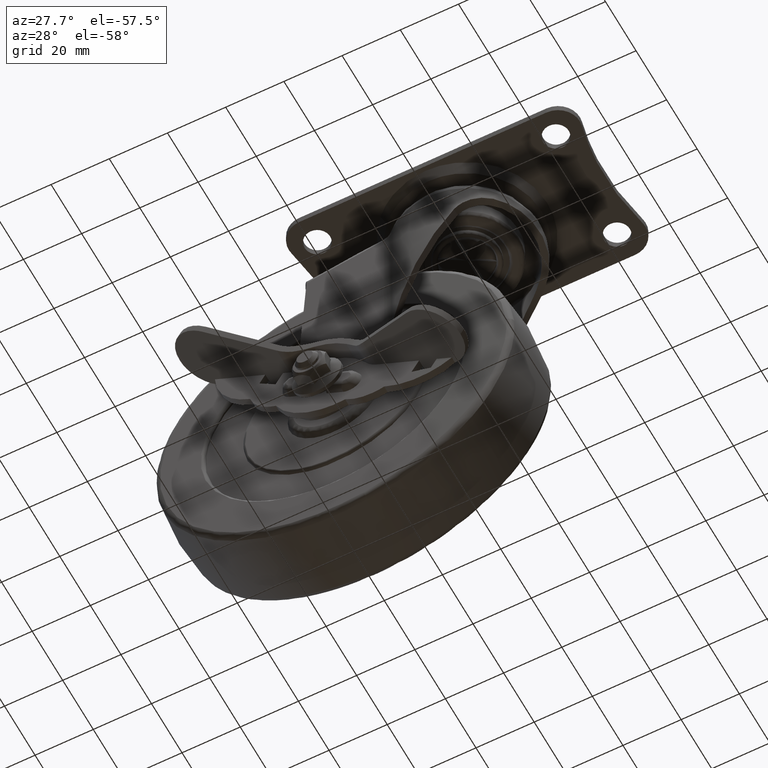
[diagram: clean part render]
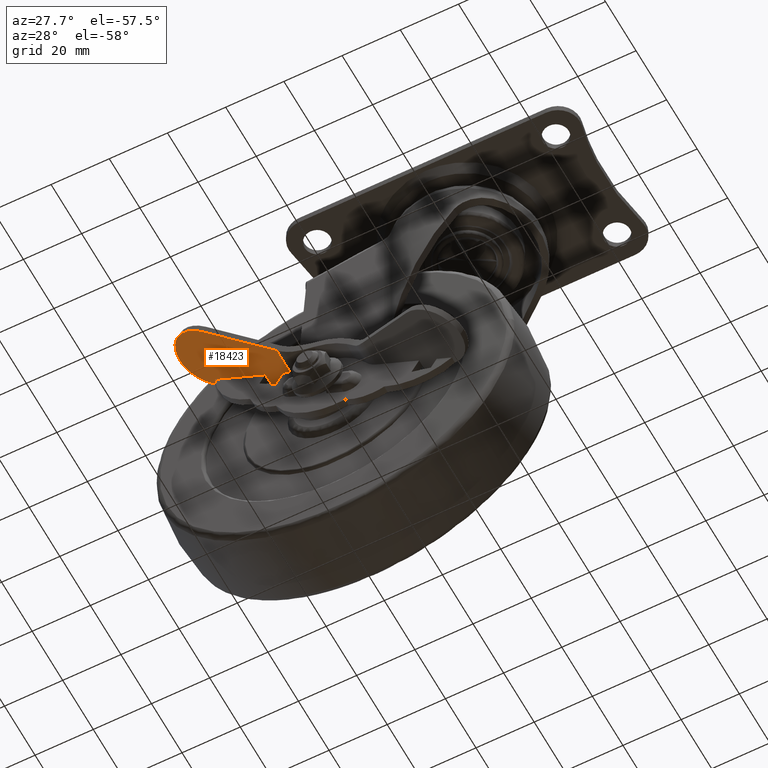
[diagram: same view with one face highlighted and labeled with its STEP entity id]
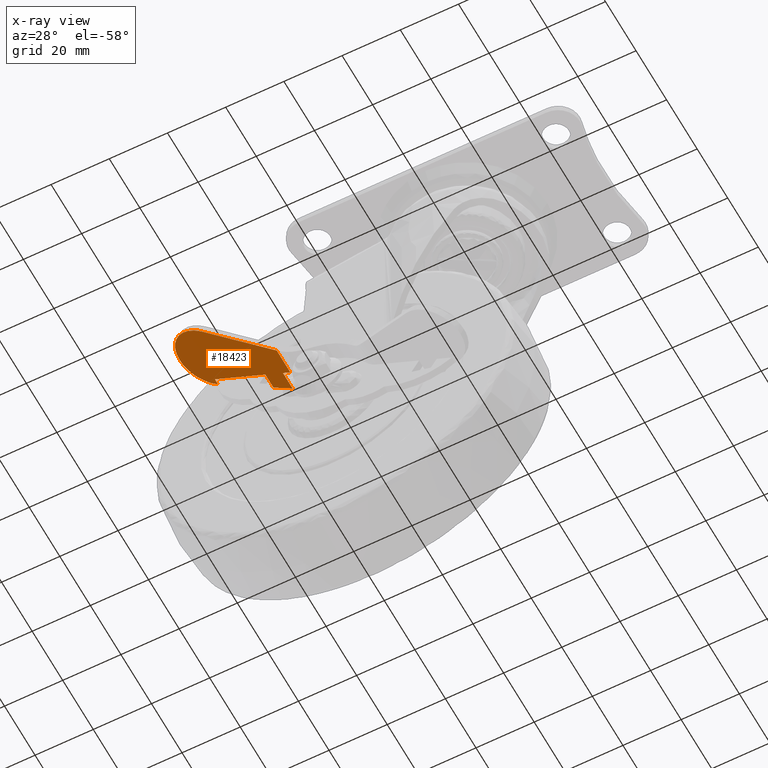
[diagram: x-ray of the same camera — body ghosted, the highlighted face saturated]
A machine part, auxiliary view. The second image highlights one B-rep face of the part: STEP entity #18423.
The next image is the same camera in x-ray: the body ghosted, the highlighted face saturated — about 0% of this face is hidden behind the body in this view.
In plain terms, the highlighted face is a freeform B-spline surface patch.
Its self-contained STEP definition (entity closure, byte-faithful):
#17139=CARTESIAN_POINT('',(-19.999994604672398,-18.300000000000001,7.649978624725780));
#17140=VERTEX_POINT('',#17139);
#17141=CARTESIAN_POINT('',(-19.999994604697601,-14.300000000000001,7.649980063593411));
#17142=VERTEX_POINT('',#17141);
#17143=CARTESIAN_POINT('',(-19.999994604672398,-18.300000000000001,7.649978624725780));
#17144=CARTESIAN_POINT('',(-19.999994604697601,-14.300000000000001,7.649980063593411));
#17145=QUASI_UNIFORM_CURVE('',1,(#17143,#17144),.UNSPECIFIED.,.F.,.U.);
#17146=EDGE_CURVE('',#17140,#17142,#17145,.T.);
#17174=CARTESIAN_POINT('',(-26.999945601030049,-15.300000000000001,7.649980063593411));
#17175=VERTEX_POINT('',#17174);
#17176=CARTESIAN_POINT('',(-26.999945601030049,-18.300000000000001,7.649980063593411));
#17177=VERTEX_POINT('',#17176);
#17178=CARTESIAN_POINT('',(-26.999945601030049,-15.300000000000001,7.649980063593411));
#17179=CARTESIAN_POINT('',(-26.999945601030049,-18.300000000000001,7.649980063593411));
#17180=QUASI_UNIFORM_CURVE('',1,(#17178,#17179),.UNSPECIFIED.,.F.,.U.);
#17181=EDGE_CURVE('',#17175,#17177,#17180,.T.);
#17209=CARTESIAN_POINT('',(-19.999994604697601,-14.300000000000001,7.649980063593411));
#17210=CARTESIAN_POINT('',(-26.999945601030049,-15.300000000000001,7.649980063593411));
#17211=QUASI_UNIFORM_CURVE('',1,(#17209,#17210),.UNSPECIFIED.,.F.,.U.);
#17212=EDGE_CURVE('',#17142,#17175,#17211,.T.);
#17231=CARTESIAN_POINT('',(-19.999994604672398,-20.600000000000001,7.649978624725780));
#17232=VERTEX_POINT('',#17231);
#17238=CARTESIAN_POINT('',(-19.999994604672398,-18.300000000000001,7.649978624725780));
#17239=CARTESIAN_POINT('',(-19.999994604672398,-20.600000000000001,7.649978624725780));
#17240=QUASI_UNIFORM_CURVE('',1,(#17238,#17239),.UNSPECIFIED.,.F.,.U.);
#17241=EDGE_CURVE('',#17140,#17232,#17240,.T.);
#17291=CARTESIAN_POINT('',(-26.999941649886900,-20.600000000000001,7.649979115490890));
#17292=VERTEX_POINT('',#17291);
#17304=CARTESIAN_POINT('',(-26.999945601030049,-18.300000000000001,7.649980063593411));
#17305=CARTESIAN_POINT('',(-26.999941649886900,-20.600000000000001,7.649979115490890));
#17306=QUASI_UNIFORM_CURVE('',1,(#17304,#17305),.UNSPECIFIED.,.F.,.U.);
#17307=EDGE_CURVE('',#17177,#17292,#17306,.T.);
#17435=CARTESIAN_POINT('',(-46.999979737671502,-18.526410372112998,7.649982614401890));
#17436=VERTEX_POINT('',#17435);
#17444=CARTESIAN_POINT('',(-55.749949705107497,-29.240069770663350,7.649983841319810));
#17445=VERTEX_POINT('',#17444);
#17446=CARTESIAN_POINT('',(-46.999979737671502,-18.526410372112998,7.649982614401890));
#17447=CARTESIAN_POINT('',(-47.725295354860727,-18.676024698821429,7.649982716105412));
#17448=CARTESIAN_POINT('',(-48.958518597166417,-19.064230858421759,7.649982889027562));
#17449=CARTESIAN_POINT('',(-50.795313765386787,-20.022257477558028,7.649983146582383));
#17450=CARTESIAN_POINT('',(-52.588784349182120,-21.419721734258669,7.649983398062242));
#17451=CARTESIAN_POINT('',(-54.036130926707948,-23.231068121248651,7.649983601008709));
#17452=CARTESIAN_POINT('',(-54.967624260050719,-25.082428437186099,7.649983731622394));
#17453=CARTESIAN_POINT('',(-55.578939534581913,-26.979826499539492,7.649983817340821));
#17454=CARTESIAN_POINT('',(-55.748043592198307,-28.382532675260279,7.649983841052535));
#17455=CARTESIAN_POINT('',(-55.749949705107497,-29.240069770663350,7.649983841319810));
#17456=B_SPLINE_CURVE_WITH_KNOTS('',3,(#17446,#17447,#17448,#17449,#17450,#17451,#17452,#17453,#17454,#17455),.UNSPECIFIED.,.F.,.U.,(4,1,1,1,1,1,1,4),(0.000000205324108,2.221749202931706,3.858865071365095,6.197596042083205,9.003983336703261,10.758032604524640,12.395143782420529,14.967710919887020),.UNSPECIFIED.);
#17457=EDGE_CURVE('',#17436,#17445,#17456,.T.);
#17615=CARTESIAN_POINT('',(-55.749949705107497,-29.293803229337449,7.649983841319810));
#17616=VERTEX_POINT('',#17615);
#17622=CARTESIAN_POINT('',(-40.523045019344949,-39.372681740579502,7.649980063593411));
#17623=VERTEX_POINT('',#17622);
#17624=CARTESIAN_POINT('',(-55.749949705107497,-29.293803229337449,7.649983841319810));
#17625=CARTESIAN_POINT('',(-55.747835635616333,-30.248935290327140,7.649983793441648));
#17626=CARTESIAN_POINT('',(-55.476959420718252,-32.270937069058817,7.649983634746462));
#17627=CARTESIAN_POINT('',(-54.481783199535009,-34.562679099938073,7.649983306766754));
#17628=CARTESIAN_POINT('',(-53.178175519463252,-36.398759855500607,7.649982935026893));
#17629=CARTESIAN_POINT('',(-51.869627859771462,-37.725314332346002,7.649982587522577));
#17630=CARTESIAN_POINT('',(-50.053511766333592,-38.967971617249553,7.649982134938776));
#17631=CARTESIAN_POINT('',(-47.919774265781477,-39.870937222195892,7.649981630859719));
#17632=CARTESIAN_POINT('',(-45.692885048991421,-40.270119720652417,7.649981131744307));
#17633=CARTESIAN_POINT('',(-43.156105425186958,-40.213247399764192,7.649980588574653));
#17634=CARTESIAN_POINT('',(-41.506599397985937,-39.787859726599237,7.649980254670797));
#17635=CARTESIAN_POINT('',(-40.523045019344949,-39.372681740579502,7.649980063593411));
#17636=B_SPLINE_CURVE_WITH_KNOTS('',3,(#17624,#17625,#17626,#17627,#17628,#17629,#17630,#17631,#17632,#17633,#17634,#17635),.UNSPECIFIED.,.F.,.U.,(4,1,1,1,1,1,1,1,1,4),(0.000000396706998,2.865431152364906,6.068060665908314,7.416530270258562,9.607841302326392,11.630422777120341,13.990230512263549,16.518599261775812,18.372722704341669,21.575302028697109),.UNSPECIFIED.);
#17637=EDGE_CURVE('',#17616,#17623,#17636,.T.);
#17677=CARTESIAN_POINT('',(-17.093880880328150,-29.496293358925250,7.649978420978481));
#17678=VERTEX_POINT('',#17677);
#17679=CARTESIAN_POINT('',(-40.523045019344949,-39.372681740579502,7.649980063593411));
#17680=CARTESIAN_POINT('',(-17.093880880328150,-29.496293358925250,7.649978420978481));
#17681=QUASI_UNIFORM_CURVE('',1,(#17679,#17680),.UNSPECIFIED.,.F.,.U.);
#17682=EDGE_CURVE('',#17623,#17678,#17681,.T.);
#18365=CARTESIAN_POINT('',(-17.093880880328150,-20.600000000000001,7.649978420978640));
#18366=VERTEX_POINT('',#18365);
#18367=CARTESIAN_POINT('',(-17.093880880328150,-20.600000000000001,7.649978420978640));
#18368=CARTESIAN_POINT('',(-17.093880880328150,-29.496293358925250,7.649978420978481));
#18369=QUASI_UNIFORM_CURVE('',1,(#18367,#18368),.UNSPECIFIED.,.F.,.U.);
#18370=EDGE_CURVE('',#18366,#17678,#18369,.T.);
#18385=CARTESIAN_POINT('',(-57.680820855626671,-41.529136112631868,7.649984112065891));
#18386=CARTESIAN_POINT('',(-15.163012149094291,-41.529136112631868,7.649978150232732));
#18387=CARTESIAN_POINT('',(-57.680820855626671,-13.004608763367120,7.649984112065891));
#18388=CARTESIAN_POINT('',(-15.163012149094291,-13.004608763367120,7.649978150232732));
#18389=B_SPLINE_SURFACE_WITH_KNOTS('',1,1,((#18385,#18387),(#18386,#18388)),.UNSPECIFIED.,.F.,.F.,.U.,(2,2),(2,2),(0.0,42.517808706532797),(0.0,28.524527349264751),.UNSPECIFIED.);
#18390=ORIENTED_EDGE('',*,*,#17457,.F.);
#18391=CARTESIAN_POINT('',(-46.999978521824097,-20.600000000000001,7.649980517690090));
#18392=VERTEX_POINT('',#18391);
#18393=CARTESIAN_POINT('',(-46.999979737671502,-18.526410372112998,7.649982614401890));
#18394=CARTESIAN_POINT('',(-46.999978521824097,-20.600000000000001,7.649980517690090));
#18395=QUASI_UNIFORM_CURVE('',1,(#18393,#18394),.UNSPECIFIED.,.F.,.U.);
#18396=EDGE_CURVE('',#17436,#18392,#18395,.T.);
#18397=ORIENTED_EDGE('',*,*,#18396,.T.);
#18398=CARTESIAN_POINT('',(-46.999978521824097,-20.600000000000001,7.649980517690090));
#18399=CARTESIAN_POINT('',(-26.999941649886900,-20.600000000000001,7.649979115490890));
#18400=QUASI_UNIFORM_CURVE('',1,(#18398,#18399),.UNSPECIFIED.,.F.,.U.);
#18401=EDGE_CURVE('',#18392,#17292,#18400,.T.);
#18402=ORIENTED_EDGE('',*,*,#18401,.T.);
#18403=ORIENTED_EDGE('',*,*,#17307,.F.);
#18404=ORIENTED_EDGE('',*,*,#17181,.F.);
#18405=ORIENTED_EDGE('',*,*,#17212,.F.);
#18406=ORIENTED_EDGE('',*,*,#17146,.F.);
#18407=ORIENTED_EDGE('',*,*,#17241,.T.);
#18408=CARTESIAN_POINT('',(-19.999994604672398,-20.600000000000001,7.649978624725780));
#18409=CARTESIAN_POINT('',(-17.093880880328150,-20.600000000000001,7.649978420978640));
#18410=QUASI_UNIFORM_CURVE('',1,(#18408,#18409),.UNSPECIFIED.,.F.,.U.);
#18411=EDGE_CURVE('',#17232,#18366,#18410,.T.);
#18412=ORIENTED_EDGE('',*,*,#18411,.T.);
#18413=ORIENTED_EDGE('',*,*,#18370,.T.);
#18414=ORIENTED_EDGE('',*,*,#17682,.F.);
#18415=ORIENTED_EDGE('',*,*,#17637,.F.);
#18416=CARTESIAN_POINT('',(-55.749949705107497,-29.240069770663350,7.649983841319810));
#18417=CARTESIAN_POINT('',(-55.749949705107497,-29.293803229337449,7.649983841319810));
#18418=QUASI_UNIFORM_CURVE('',1,(#18416,#18417),.UNSPECIFIED.,.F.,.U.);
#18419=EDGE_CURVE('',#17445,#17616,#18418,.T.);
#18420=ORIENTED_EDGE('',*,*,#18419,.F.);
#18421=EDGE_LOOP('',(#18390,#18397,#18402,#18403,#18404,#18405,#18406,#18407,#18412,#18413,#18414,#18415,#18420));
#18422=FACE_OUTER_BOUND('',#18421,.T.);
#18423=ADVANCED_FACE('',(#18422),#18389,.F.);